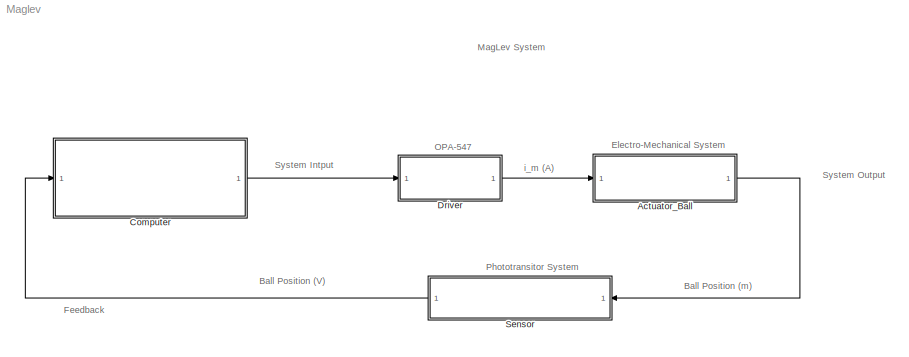
MODEL Maglev
KIND model
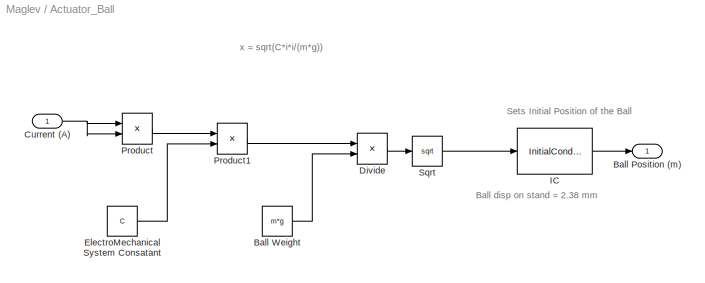
BLOCK [SubSystem] Actuator_Ball
  FunctionWithSeparateData = off
  MaskHideContents = off
  MinAlgLoopOccurrences = off
  Opaque = off
  Ports = [1, 1]
  PropExecContextOutsideSubsystem = off
  RTWSystemCode = Auto
  RequestExecContextInheritance = off
  SID = 40
BLOCK [Outport] Actuator_Ball/Ball Position (m)
  IconDisplay = Port number
  SID = 42
BLOCK [Constant] Actuator_Ball/Ball Weight
  SID = 53
  Value = m*g
BLOCK [Inport] Actuator_Ball/Current (A)
  IconDisplay = Port number
  SID = 41
BLOCK [Product] Actuator_Ball/Divide
  InputSameDT = off
  Inputs = */
  OutDataTypeStr = Inherit: Inherit via internal rule
  Ports = [2, 1]
  RndMeth = Floor
  SID = 52
  SaturateOnIntegerOverflow = off
BLOCK [Constant] Actuator_Ball/ElectroMechanical System Consatant
  SID = 51
  Value = C
BLOCK [InitialCondition] Actuator_Ball/IC
  SID = 59
  Value = (2.38/1000)
BLOCK [Product] Actuator_Ball/Product
  InputSameDT = off
  OutDataTypeStr = Inherit: Inherit via internal rule
  Ports = [2, 1]
  SID = 49
  SaturateOnIntegerOverflow = off
BLOCK [Product] Actuator_Ball/Product1
  InputSameDT = off
  OutDataTypeStr = Inherit: Inherit via internal rule
  Ports = [2, 1]
  SID = 50
  SaturateOnIntegerOverflow = off
BLOCK [Sqrt] Actuator_Ball/Sqrt
  SID = 54
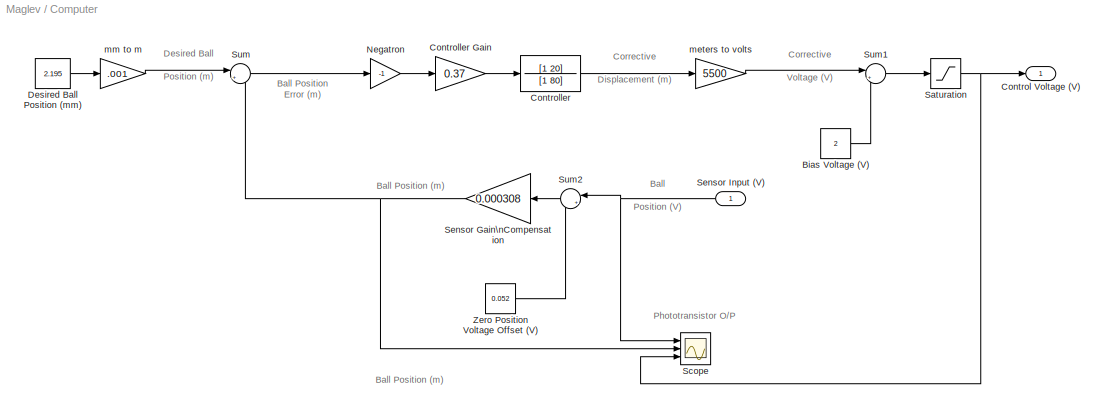
BLOCK [SubSystem] Computer
  FunctionWithSeparateData = off
  MaskHideContents = off
  MinAlgLoopOccurrences = off
  Opaque = off
  Ports = [1, 1]
  PropExecContextOutsideSubsystem = off
  RTWSystemCode = Auto
  RequestExecContextInheritance = off
  SID = 10
BLOCK [Constant] Computer/Bias Voltage (V)
  SID = 13
  Value = 2
BLOCK [Outport] Computer/Control Voltage (V)
  IconDisplay = Port number
  SID = 12
BLOCK [TransferFcn] Computer/Controller
  Denominator = [1 80]
  Numerator = [1 20]
  SID = 14
BLOCK [Gain] Computer/Controller Gain
  Gain = 0.37
  OutDataTypeStr = Inherit: Inherit via internal rule
  ParamDataTypeStr = Inherit: Inherit via internal rule
  SID = 35
  SaturateOnIntegerOverflow = off
BLOCK [Constant] Computer/Desired Ball Position (mm)
  SID = 15
  Value = 2.195
BLOCK [Gain] Computer/Negatron
  Gain = -1
  OutDataTypeStr = Inherit: Inherit via internal rule
  ParamDataTypeStr = Inherit: Inherit via internal rule
  SID = 36
  SaturateOnIntegerOverflow = off
BLOCK [Saturate] Computer/Saturation
  InputPortMap = u0
  LowerLimit = 0
  Ports = [1, 1]
  SID = 34
  UpperLimit = 5
BLOCK [Scope] Computer/Scope
  DataFormat = StructureWithTime
  Floating = off
  LimitDataPoints = off
  NumInputPorts = 3
  Ports = [3]
  SID = 31
  SampleTime = 0
  TimeRange = 10
  YMax = 5~5~5
  YMin = -5~-5~-5
BLOCK [Gain] Computer/Sensor Gain\nCompensation
  Gain = 0.000308
  OutDataTypeStr = Inherit: Inherit via internal rule
  ParamDataTypeStr = Inherit: Inherit via internal rule
  SID = 16
  SaturateOnIntegerOverflow = off
BLOCK [Inport] Computer/Sensor Input (V)
  IconDisplay = Port number
  SID = 11
BLOCK [Sum] Computer/Sum
  IconShape = round
  InputSameDT = off
  Inputs = |+-
  OutDataTypeStr = Inherit: Inherit via internal rule
  Ports = [2, 1]
  SID = 17
  SaturateOnIntegerOverflow = off
BLOCK [Sum] Computer/Sum1
  IconShape = round
  Inputs = |++
  OutDataTypeStr = Inherit: Inherit via internal rule
  Ports = [2, 1]
  SID = 18
  SaturateOnIntegerOverflow = off
BLOCK [Sum] Computer/Sum2
  IconShape = round
  InputSameDT = off
  Inputs = |+-
  OutDataTypeStr = Inherit: Inherit via internal rule
  Ports = [2, 1]
  SID = 19
  SaturateOnIntegerOverflow = off
BLOCK [Constant] Computer/Zero Position Voltage Offset (V)
  SID = 21
  Value = 0.052
BLOCK [Gain] Computer/meters to volts
  Gain = 5500
  OutDataTypeStr = Inherit: Inherit via internal rule
  ParamDataTypeStr = Inherit: Inherit via internal rule
  SID = 28
  SaturateOnIntegerOverflow = off
BLOCK [Gain] Computer/mm to m
  Gain = .001
  OutDataTypeStr = Inherit: Inherit via internal rule
  ParamDataTypeStr = Inherit: Inherit via internal rule
  SID = 32
  SaturateOnIntegerOverflow = off
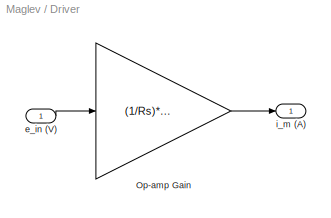
BLOCK [SubSystem] Driver
  FunctionWithSeparateData = off
  MaskHideContents = off
  MinAlgLoopOccurrences = off
  Opaque = off
  Ports = [1, 1]
  PropExecContextOutsideSubsystem = off
  RTWSystemCode = Auto
  RequestExecContextInheritance = off
  SID = 37
BLOCK [Gain] Driver/Op-amp Gain
  Gain = (1/Rs)*(R2/(R1 + R2))
  OutDataTypeStr = Inherit: Inherit via internal rule
  ParamDataTypeStr = Inherit: Inherit via internal rule
  SID = 48
  SaturateOnIntegerOverflow = off
BLOCK [Inport] Driver/e_in (V)
  IconDisplay = Port number
  SID = 38
BLOCK [Outport] Driver/i_m (A)
  IconDisplay = Port number
  SID = 39
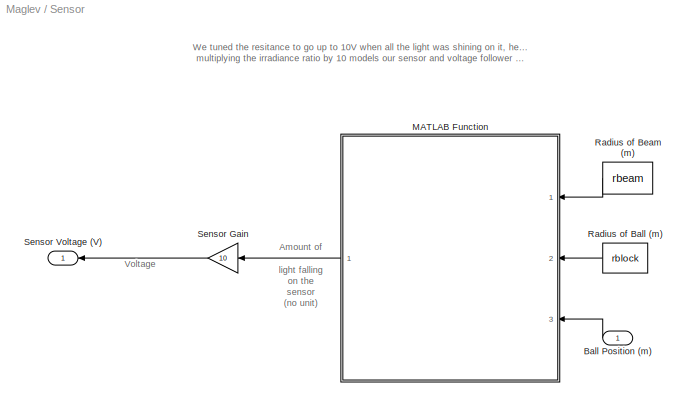
BLOCK [SubSystem] Sensor
  FunctionWithSeparateData = off
  MaskHideContents = off
  MinAlgLoopOccurrences = off
  Opaque = off
  Ports = [1, 1]
  PropExecContextOutsideSubsystem = off
  RTWSystemCode = Auto
  RequestExecContextInheritance = off
  SID = 43
BLOCK [Inport] Sensor/Ball Position (m)
  IconDisplay = Port number
  SID = 44
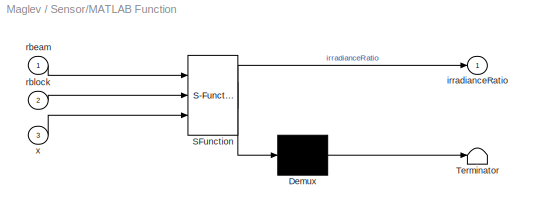
BLOCK [SubSystem] Sensor/MATLAB Function
  ErrorFcn = Stateflow.Translate.translate
  FunctionWithSeparateData = off
  MaskDescription = Embedded MATLAB block
  MaskDisplay = bgColor = Simulink.Root.ColorString2Rgb(get_param(gcbh, 'BackgroundColor')); image(imread('private/eml_membrane_16.png','png','BackgroundColor',bgColor(1:3)),'center'); disp([10 10 'irradianceEstimator']);
  MaskHideContents = off
  MaskIconFrame = on
  MaskIconOpaque = off
  MaskIconRotate = none
  MaskIconUnits = normalized
  MaskPortRotate = default
  MaskSelfModifiable = on
  MaskType = Stateflow
  MinAlgLoopOccurrences = off
  Opaque = off
  PermitHierarchicalResolution = ExplicitOnly
  Ports = [3, 1]
  PropExecContextOutsideSubsystem = off
  RTWSystemCode = Auto
  RequestExecContextInheritance = off
  SID = 55
  TreatAsAtomicUnit = on
BLOCK [Demux] Sensor/MATLAB Function/ Demux 
  Outputs = 1
  Ports = [1, 1]
  SID = 55::15
BLOCK [S-Function] Sensor/MATLAB Function/ SFunction 
  EnableBusSupport = off
  FunctionName = sf_sfun
  PortCounts = [3 2]
  Ports = [3, 2]
  SID = 55::14
  Tag = Stateflow S-Function Maglev 2
BLOCK [Terminator] Sensor/MATLAB Function/ Terminator 
  SID = 55::17
BLOCK [Outport] Sensor/MATLAB Function/irradianceRatio
  IconDisplay = Port number
  SID = 55::5
BLOCK [Inport] Sensor/MATLAB Function/rbeam
  IconDisplay = Port number
  SID = 55::1
BLOCK [Inport] Sensor/MATLAB Function/rblock
  IconDisplay = Port number
  Port = 2
  SID = 55::18
BLOCK [Inport] Sensor/MATLAB Function/x
  IconDisplay = Port number
  Port = 3
  SID = 55::19
BLOCK [Constant] Sensor/Radius of Ball (m)
  SID = 57
  Value = rblock
BLOCK [Constant] Sensor/Radius of Beam (m)
  SID = 56
  Value = rbeam
BLOCK [Gain] Sensor/Sensor Gain
  Gain = 10
  OutDataTypeStr = Inherit: Inherit via internal rule
  ParamDataTypeStr = Inherit: Inherit via internal rule
  SID = 58
  SaturateOnIntegerOverflow = off
BLOCK [Outport] Sensor/Sensor Voltage (V)
  IconDisplay = Port number
  SID = 45
ANNOTATION (root): Ball Position (V)
ANNOTATION (root): Ball Position (m)
ANNOTATION (root): Electro-Mechanical System
ANNOTATION (root): Feedback
ANNOTATION (root): MagLev System
ANNOTATION (root): OPA-547
ANNOTATION (root): Phototransitor System
ANNOTATION (root): System Intput
ANNOTATION (root): System Output
ANNOTATION (root): i_m (A)
ANNOTATION Actuator_Ball: Ball disp on stand = 2.38 mm
ANNOTATION Actuator_Ball: Sets Initial Position of the Ball
ANNOTATION Actuator_Ball: x = sqrt(C*i*i/(m*g))
ANNOTATION Computer: Ball Position (m)
ANNOTATION Computer: Ball Position \nError (m)
ANNOTATION Computer: Ball \nPosition (V)
ANNOTATION Computer: Corrective \nDisplacement (m)
ANNOTATION Computer: Corrective \nVoltage (V)
ANNOTATION Computer: Desired Ball \nPosition (m)
ANNOTATION Computer: Phototransistor O/P
ANNOTATION Sensor: Amount of \nlight falling \non the\nsensor\n(no unit)
ANNOTATION Sensor: Voltage
ANNOTATION Sensor: We tuned the resitance to go up to 10V when all the light was shining on it, hence\n multiplying the irradiance ratio by 10 models our sensor and voltage follower circuit
LINE Actuator_Ball/Ball Weight:1 -> Actuator_Ball/Divide:2
NET Actuator_Ball/Current (A):1 -> Actuator_Ball/Product:1, Actuator_Ball/Product:2
LINE Actuator_Ball/Divide:1 -> Actuator_Ball/Sqrt:1
LINE Actuator_Ball/ElectroMechanical System Consatant:1 -> Actuator_Ball/Product1:2
LINE Actuator_Ball/IC:1 -> Actuator_Ball/Ball Position (m):1
LINE Actuator_Ball/Product1:1 -> Actuator_Ball/Divide:1
LINE Actuator_Ball/Product:1 -> Actuator_Ball/Product1:1
LINE Actuator_Ball/Sqrt:1 -> Actuator_Ball/IC:1
LINE Actuator_Ball:1 -> Sensor:1
LINE Computer/Bias Voltage (V):1 -> Computer/Sum1:2
LINE Computer/Controller Gain:1 -> Computer/Controller:1
LINE Computer/Controller:1 -> Computer/meters to volts:1
LINE Computer/Desired Ball Position (mm):1 -> Computer/mm to m:1
LINE Computer/Negatron:1 -> Computer/Controller Gain:1
NET Computer/Saturation:1 -> Computer/Control Voltage (V):1, Computer/Scope:3
NET Computer/Sensor Gain\nCompensation:1 -> Computer/Scope:2, Computer/Sum:2
NET Computer/Sensor Input (V):1 -> Computer/Scope:1, Computer/Sum2:1
LINE Computer/Sum1:1 -> Computer/Saturation:1
LINE Computer/Sum2:1 -> Computer/Sensor Gain\nCompensation:1
LINE Computer/Sum:1 -> Computer/Negatron:1
LINE Computer/Zero Position Voltage Offset (V):1 -> Computer/Sum2:2
LINE Computer/meters to volts:1 -> Computer/Sum1:1
LINE Computer/mm to m:1 -> Computer/Sum:1
LINE Computer:1 -> Driver:1
LINE Driver/Op-amp Gain:1 -> Driver/i_m (A):1
LINE Driver/e_in (V):1 -> Driver/Op-amp Gain:1
LINE Driver:1 -> Actuator_Ball:1
LINE Sensor/Ball Position (m):1 -> Sensor/MATLAB Function:3
LINE Sensor/MATLAB Function/ Demux :1 -> Sensor/MATLAB Function/ Terminator :1
LINE Sensor/MATLAB Function/ SFunction :1 -> Sensor/MATLAB Function/ Demux :1
LINE Sensor/MATLAB Function/ SFunction :2 -> Sensor/MATLAB Function/irradianceRatio:1
LINE Sensor/MATLAB Function/rbeam:1 -> Sensor/MATLAB Function/ SFunction :1
LINE Sensor/MATLAB Function/rblock:1 -> Sensor/MATLAB Function/ SFunction :2
LINE Sensor/MATLAB Function/x:1 -> Sensor/MATLAB Function/ SFunction :3
LINE Sensor/MATLAB Function:1 -> Sensor/Sensor Gain:1
LINE Sensor/Radius of Ball (m):1 -> Sensor/MATLAB Function:2
LINE Sensor/Radius of Beam (m):1 -> Sensor/MATLAB Function:1
LINE Sensor/Sensor Gain:1 -> Sensor/Sensor Voltage (V):1
LINE Sensor:1 -> Computer:1
note: NET lines group one-source signal fan-out (src -> all destinations, sorted); 1:1 wires keep LINE
CHART Sensor/MATLAB Function states=1 transitions=1
  STATE_LABEL 'eML_blk_kernel()'
